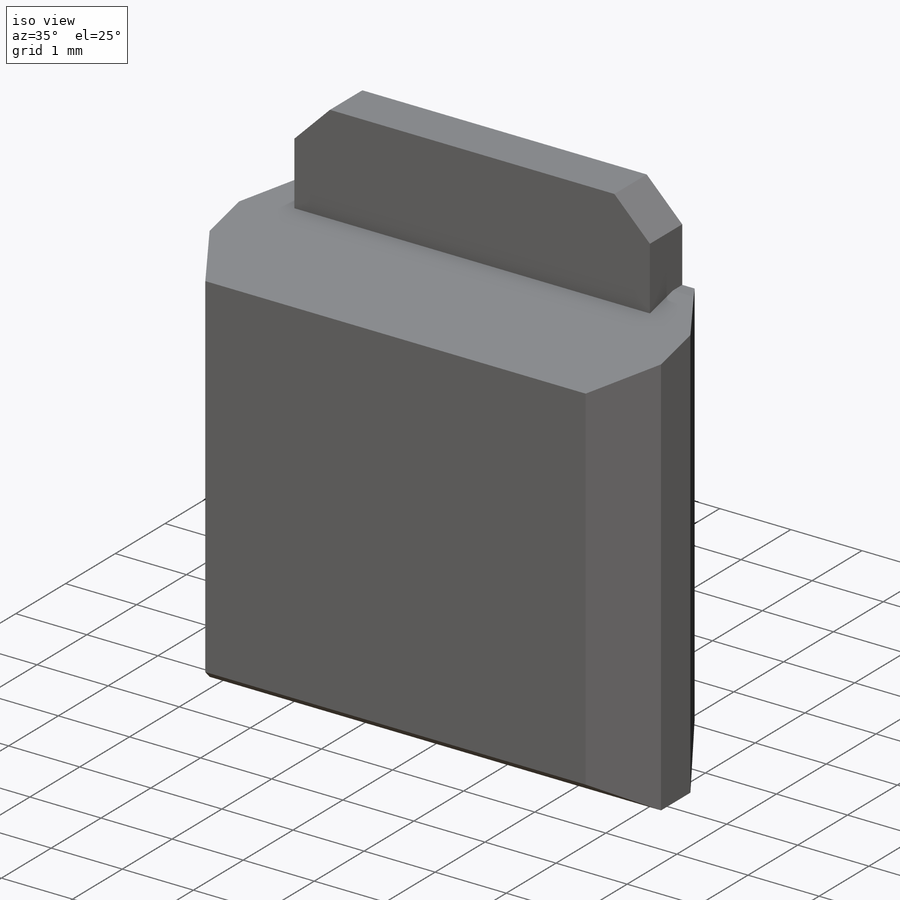
[diagram: iso view]
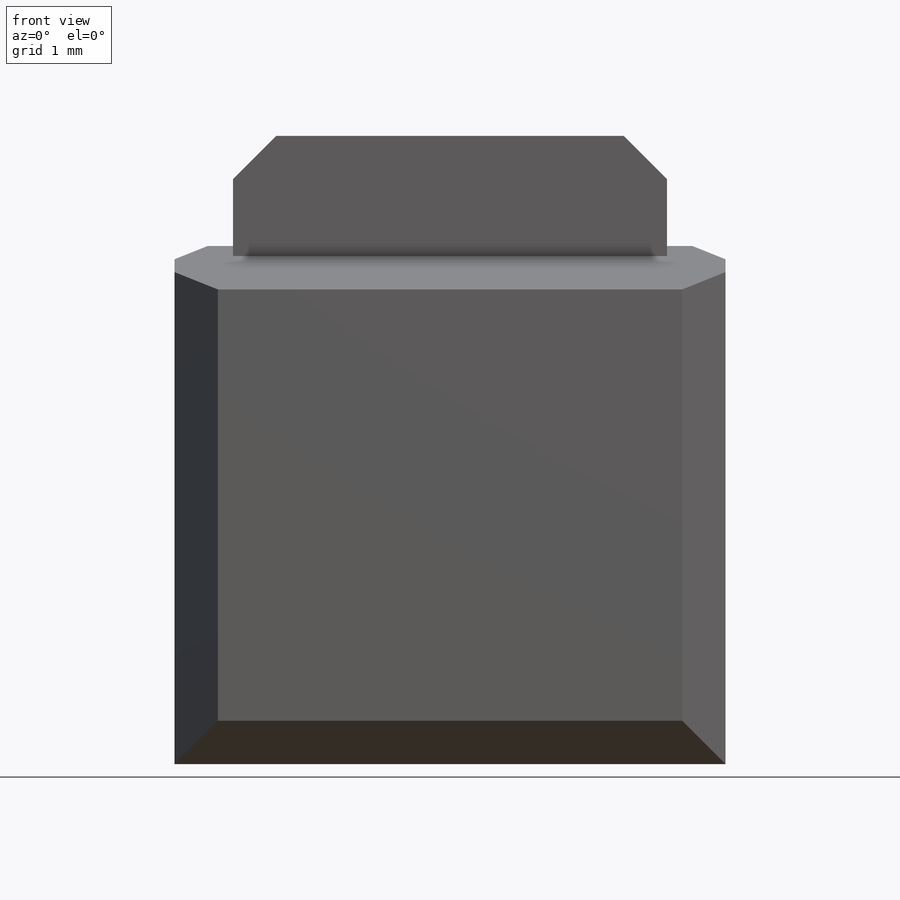
[diagram: front view]
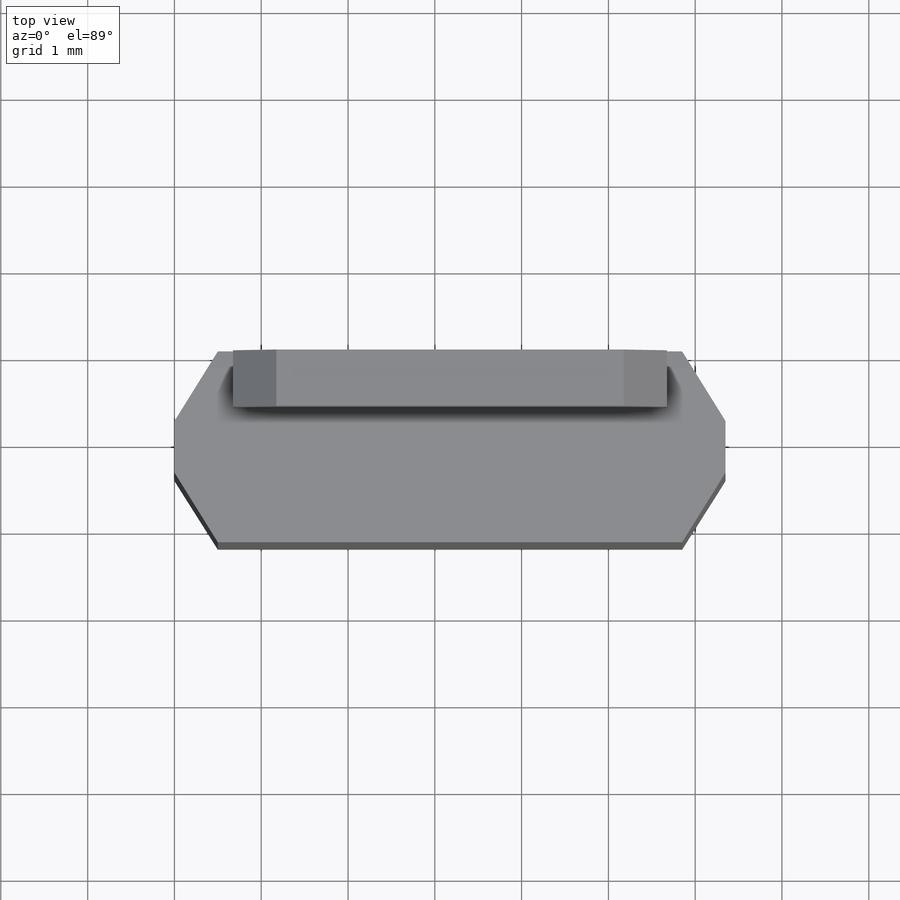
[diagram: top view]
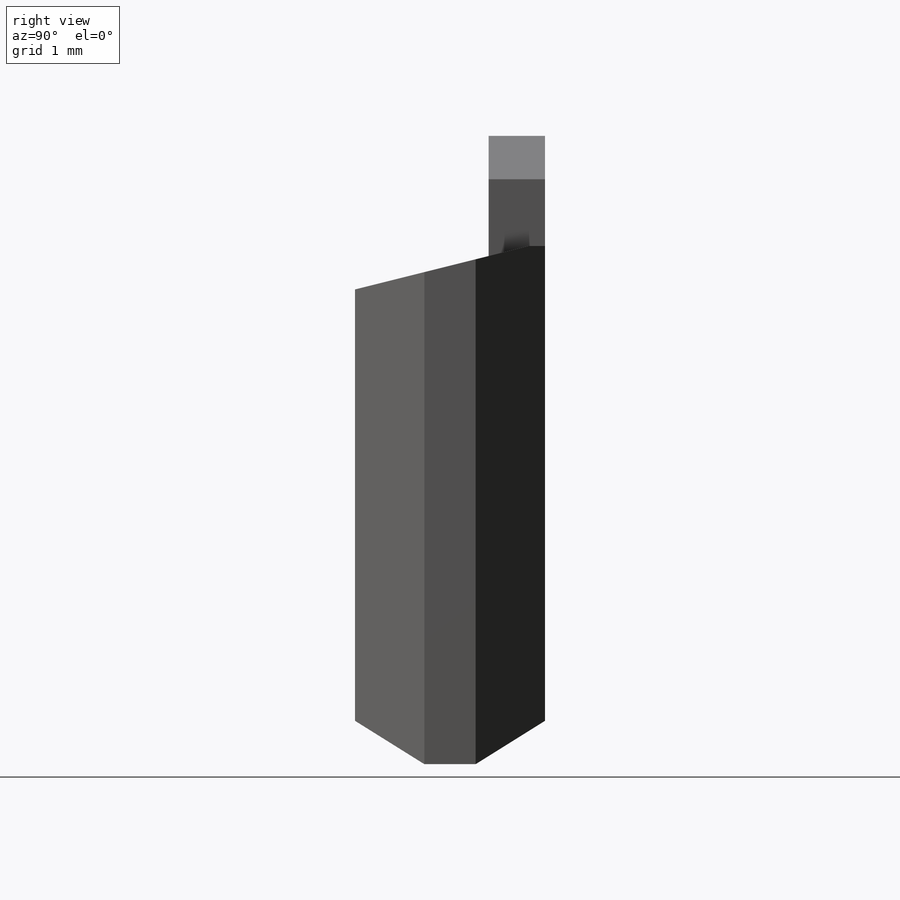
[diagram: right view]
SOLIDWORKS PART (.sldprt)
format: sldprt  version: not decoded by parser v0  size: 167,936 bytes
history: native  units: mm
features: chamfer x8, plane x3, sketch x2, extrude x2, material x1 (+12 scaffold rows collapsed)
feature tree (28):
  scaffold x12  (default folders/planes/origin — collapsed)
  material  "Matériau <non spécifié>"
  plane  "Plan de face"
  plane  "Plan de dessus"
  plane  "Plan de droite"
  sketch  "Esquisse1"  dims[D1=5.97mm D2=6.35mm]
  extrude  "Boss.-Extru.1"  Depth=2.19mm
  chamfer  "Chanfrein1"  Distance=0.8mm
  chamfer  "Chanfrein2"  Distance=0.5mm
  chamfer  "Chanfrein3"  Distance=0.8mm
  chamfer  "Chanfrein4"  Distance=0.5mm
  chamfer  "Chanfrein5"  Distance=0.8mm
  chamfer  "Chanfrein6"  Distance=0.5mm
  chamfer  "Chanfrein7"  Distance=2mm
  sketch  "Esquisse2"  dims[c1.D1=~2.522242mm c1.D3=5.0mm c2.D1=2.5mm c2.D2=2.5mm c2.D3=0.65mm]
  extrude  "Boss.-Extru.2"  Depth=1.27mm
  chamfer  "Chanfrein8"  Distance=0.5mm Angle=45deg
decode coverage: 12 of 12 modeling features carry decoded parameters
note: ~ marks probable driven/reference dimensions
note: suppression state not decoded; provenance and decode notes live in map.json
